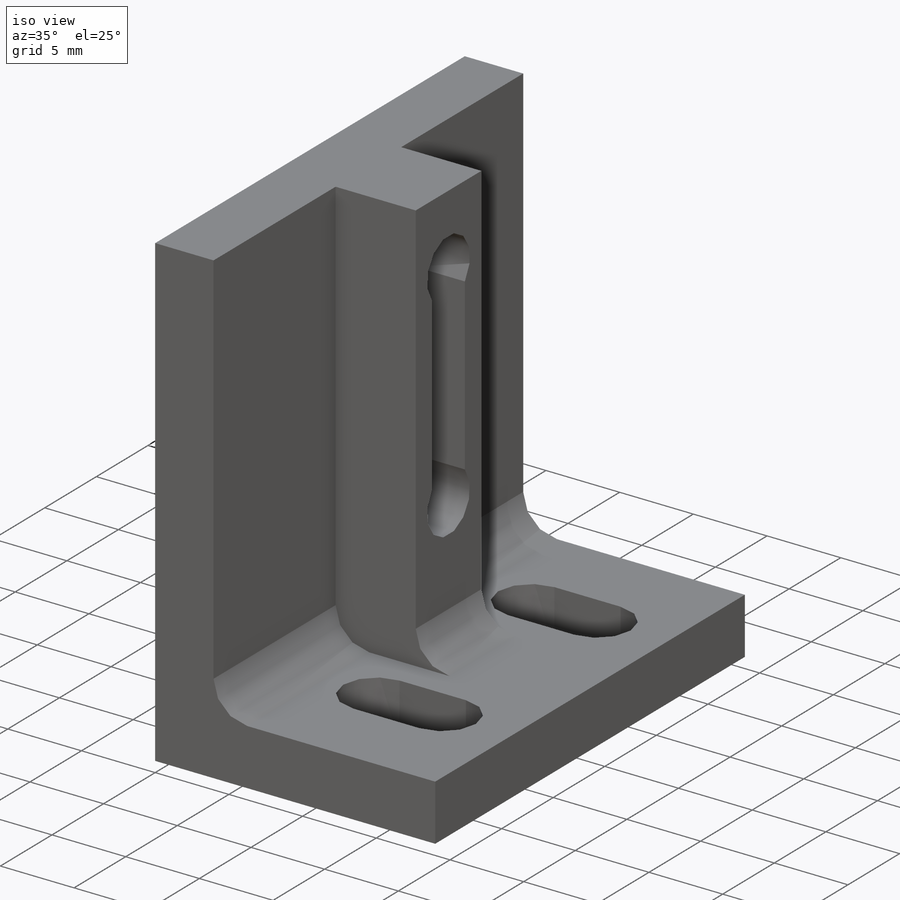
[diagram: iso view]
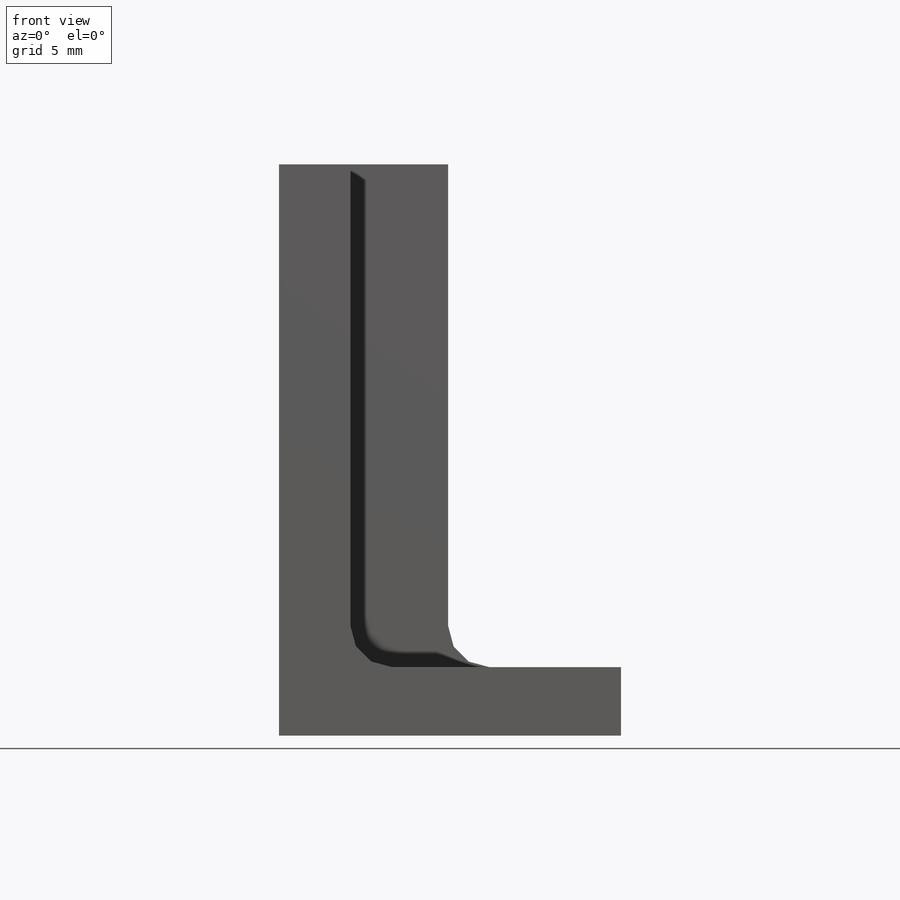
[diagram: front view]
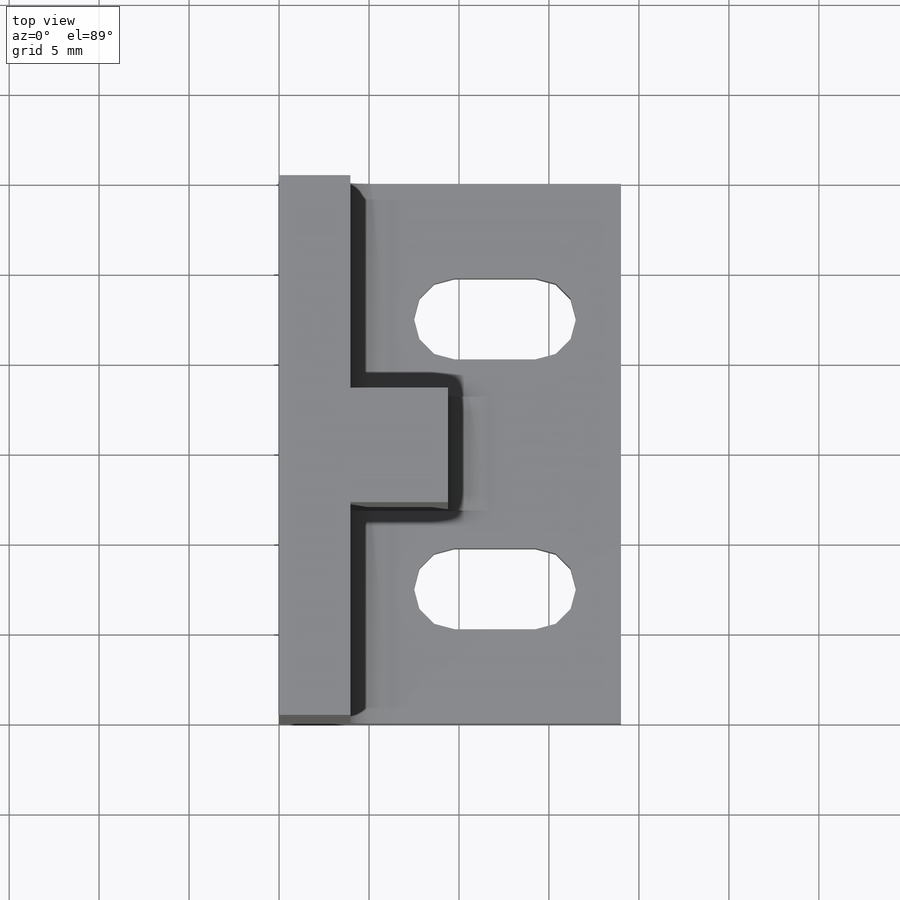
[diagram: top view]
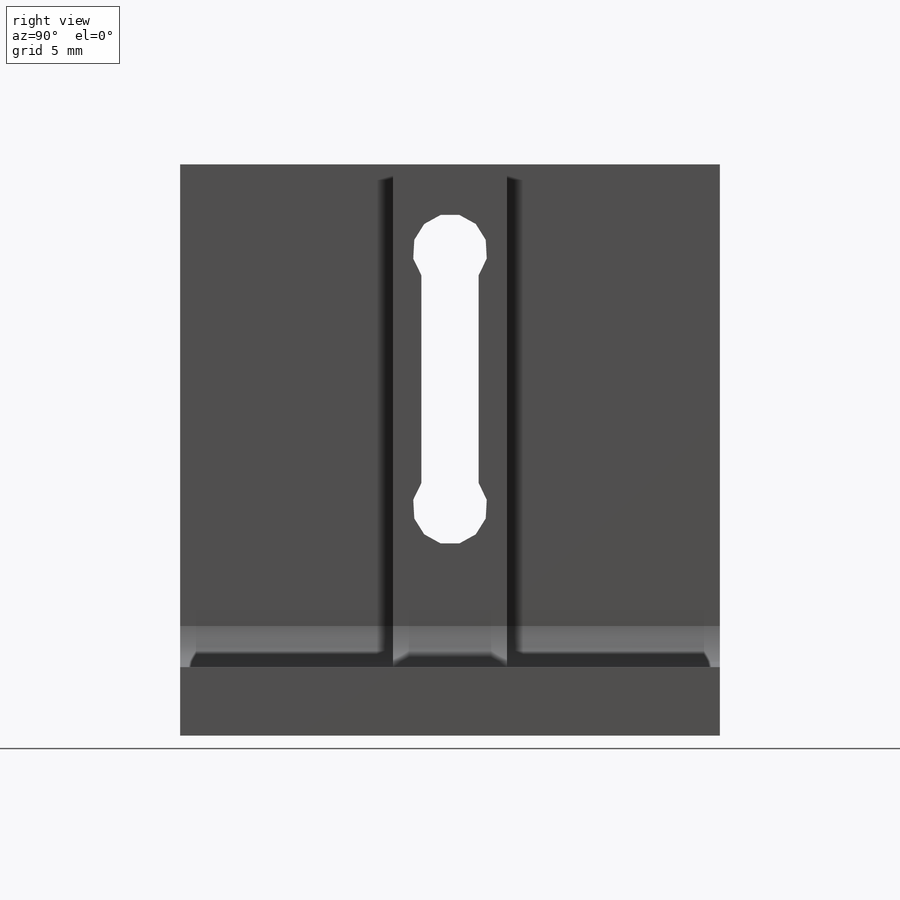
[diagram: right view]
SOLIDWORKS PART (.sldprt)
format: sldprt  version: not decoded by parser v0  size: 356,352 bytes
history: native  units: mm
features: sketch x8, cut_extrude x4, fillet x2, material x1, plane x1, extrude x1, hole x1 (+11 scaffold rows collapsed)
feature tree (29):
  scaffold x11  (default folders/planes/origin — collapsed)
  material  "6061-T6 Al"
  sketch  "Sketch1"  dims[c1.D1=31.75mm c1.D2=19.0mm c2.D1=30.0mm c2.D5=3.81mm c2.D6=1.0mm c2.D7=1.5mm]
  sketch  "Sketch4"  dims[c1.D1=4.5mm c1.D6=~2.063071mm c2.D1=2.25mm c2.D3=4.5mm c2.D4=~4.060251mm c3.D3=1.5875mm c3.D2=15.0mm c4.D3=9.5mm c4.D4=7.35mm c4.D5=6.325mm c5.D4=9.55mm c5.D1=3.5mm c5.D2=16.0mm c5.D3=15.0mm c6.D1=15.0mm c6.D4=14.224mm c7.D1=21.25mm c7.D2=15.0mm c8.D1=26.924mm]
  sketch  "Sketch6"  dims[c1.D1=2.25mm c1.D5=2.25mm c2.D1=7.5mm c2.D2=15.0mm c2.D3=4.7498mm c2.D4=4.5mm]
  cut_extrude  "Extrude5"  [1 undecoded]
  plane  "Plane1"  Offset=0mm
  sketch  "Sketch10"  dims[D1=5.588mm]
  extrude  "Boss-Extrude1"  [1 undecoded]
  cut_extrude  "Cut-Extrude1"  [1 undecoded]
  sketch  "Sketch11"  dims[c1.D1=4.5mm c1.D6=~2.063071mm c2.D1=2.25mm c2.D3=4.5mm c2.D4=~4.060251mm c3.D3=2.3749mm c3.D2=15.0mm c4.D3=9.5mm c4.D4=7.35mm c4.D5=6.325mm c5.D4=9.55mm c5.D1=3.5mm c5.D2=16.0mm c5.D3=15.0mm c6.D1=15.0mm c6.D4=8.0mm c7.D1=21.25mm c7.D2=15.0mm]
  hole  "#8-32 Tapped Hole1"  Diameter=4.1656mm Depth=9.398mm
  sketch  "Sketch13"
  sketch  "Sketch12"  dims[hole-wizard template sketch: 59 standard entries collapsed; hole parameters kept: c18.Thread Major Dia.=4.1656mm c18.Thru Tap Drill Depth=9.398mm]
  sketch  "Sketch14"  dims[D1=3.9624mm D2=6.35mm]
  cut_extrude  "Cut-Extrude2"  [1 undecoded]
  fillet  "Fillet1"  Radius=2.286mm
  fillet  "Fillet2"  Radius=2.286mm
  cut_extrude  "Cut-Extrude3"  Depth=5.9944mm
decode coverage: 11 of 16 modeling features carry decoded parameters
note: ~ marks probable driven/reference dimensions
note: 4 parameter values undecoded
summary: no parameter record found for 4 features
note: suppression state not decoded; provenance and decode notes live in map.json
